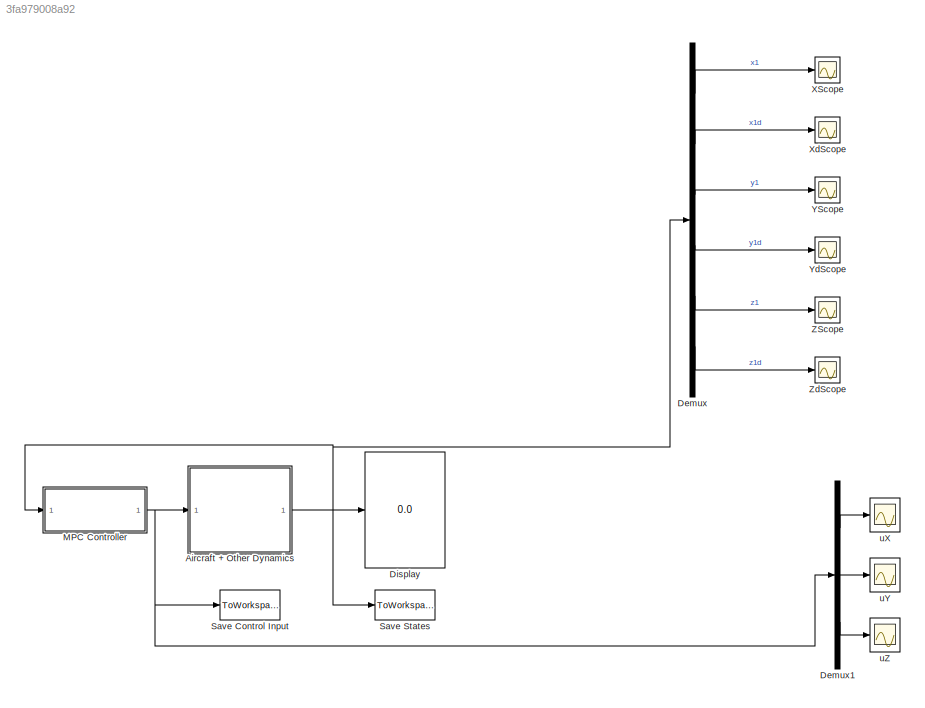
MODEL slx_3fa979008a92
KIND model
CONFIG AbsTol = auto
CONFIG EnableMultiTasking = off
CONFIG FixedStep = tstep
CONFIG InitFcn = initSim;
CONFIG MaxStep = tstep
CONFIG MinStep = auto
CONFIG RelTol = 1e-3
CONFIG SampleTimeConstraint = Unconstrained
CONFIG Solver = ode23t
CONFIG SolverName = ode23t
CONFIG StartTime = 0.0
CONFIG StopFcn = plotSimSolution;
CONFIG StopTime = 5
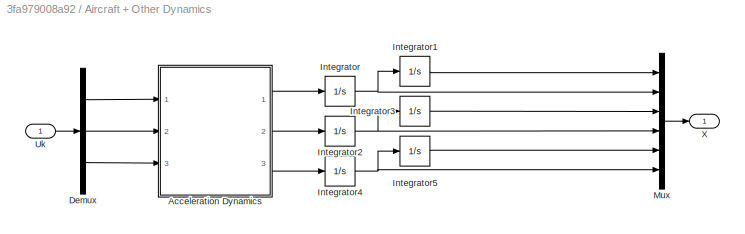
BLOCK [SubSystem] Aircraft + Other Dynamics
  Ports = [1, 1]
  RequestExecContextInheritance = off
  Variant = off
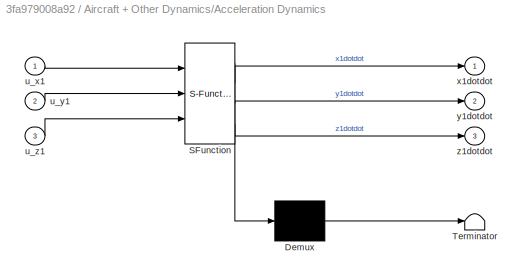
BLOCK [SubSystem] Aircraft + Other Dynamics/Acceleration Dynamics
  ErrorFcn = Stateflow.Translate.translate
  PermitHierarchicalResolution = ExplicitOnly
  Ports = [3, 3]
  RequestExecContextInheritance = off
  SFBlockType = MATLAB Function
  TreatAsAtomicUnit = on
  Variant = off
BLOCK [Demux] Aircraft + Other Dynamics/Acceleration Dynamics/ Demux 
  Outputs = 1
  Ports = [1, 1]
BLOCK [S-Function] Aircraft + Other Dynamics/Acceleration Dynamics/ SFunction 
  EnableBusSupport = on
  FunctionName = sf_sfun
  PortCounts = [3 4]
  Ports = [3, 4]
  SFcnIsStateOwnerBlock = off
  SFunctionDeploymentMode = off
  Tag = Stateflow S-Function SingleAgentNewtonian 2
BLOCK [Terminator] Aircraft + Other Dynamics/Acceleration Dynamics/ Terminator 
BLOCK [Inport] Aircraft + Other Dynamics/Acceleration Dynamics/u_x1
  IconDisplay = Port number
BLOCK [Inport] Aircraft + Other Dynamics/Acceleration Dynamics/u_y1
  IconDisplay = Port number
  Port = 2
BLOCK [Inport] Aircraft + Other Dynamics/Acceleration Dynamics/u_z1
  IconDisplay = Port number
  Port = 3
BLOCK [Outport] Aircraft + Other Dynamics/Acceleration Dynamics/x1dotdot
  IconDisplay = Port number
BLOCK [Outport] Aircraft + Other Dynamics/Acceleration Dynamics/y1dotdot
  IconDisplay = Port number
  Port = 2
BLOCK [Outport] Aircraft + Other Dynamics/Acceleration Dynamics/z1dotdot
  IconDisplay = Port number
  Port = 3
BLOCK [Demux] Aircraft + Other Dynamics/Demux
  DisplayOption = bar
  Outputs = 3
  Ports = [1, 3]
BLOCK [Integrator] Aircraft + Other Dynamics/Integrator
  Ports = [1, 1]
BLOCK [Integrator] Aircraft + Other Dynamics/Integrator1
  InitialCondition = 2.1
  Ports = [1, 1]
BLOCK [Integrator] Aircraft + Other Dynamics/Integrator2
  Ports = [1, 1]
BLOCK [Integrator] Aircraft + Other Dynamics/Integrator3
  Ports = [1, 1]
BLOCK [Integrator] Aircraft + Other Dynamics/Integrator4
  Ports = [1, 1]
BLOCK [Integrator] Aircraft + Other Dynamics/Integrator5
  InitialCondition = 2.2
  Ports = [1, 1]
BLOCK [Mux] Aircraft + Other Dynamics/Mux
  DisplayOption = bar
  Inputs = 6
  Ports = [6, 1]
BLOCK [Inport] Aircraft + Other Dynamics/Uk
  IconDisplay = Port number
BLOCK [Outport] Aircraft + Other Dynamics/X
  IconDisplay = Port number
BLOCK [Demux] Demux
  DisplayOption = bar
  Outputs = 6
  Ports = [1, 6]
BLOCK [Demux] Demux1
  DisplayOption = bar
  Outputs = 3
  Ports = [1, 3]
BLOCK [Display] Display
  Decimation = 1
  Ports = [1]
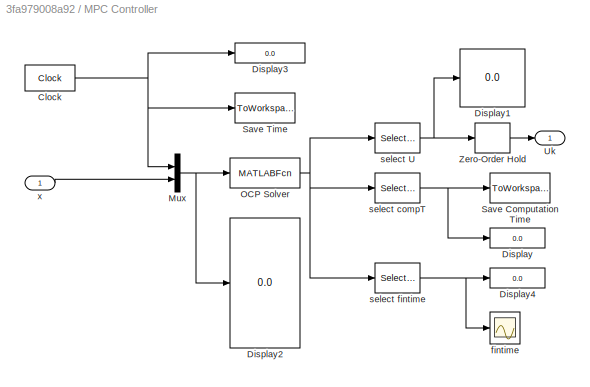
BLOCK [SubSystem] MPC Controller 
  Ports = [1, 1]
  RequestExecContextInheritance = off
  Variant = off
BLOCK [Clock] MPC Controller /Clock
  DisplayTime = on
BLOCK [Display] MPC Controller /Display
  Decimation = 1
  Ports = [1]
BLOCK [Display] MPC Controller /Display1
  Decimation = 1
  Ports = [1]
BLOCK [Display] MPC Controller /Display2
  Decimation = 1
  Ports = [1]
BLOCK [Display] MPC Controller /Display3
  Decimation = 1
  Ports = [1]
BLOCK [Display] MPC Controller /Display4
  Decimation = 1
  Ports = [1]
BLOCK [Mux] MPC Controller /Mux
  DisplayOption = bar
  Inputs = 2
  Ports = [2, 1]
BLOCK [MATLABFcn] MPC Controller /OCP Solver
  MATLABFcn = SingleAgentSolver
  OutputDimensions = m+2
  Ports = [1, 1]
BLOCK [ToWorkspace] MPC Controller /Save Computation Time 
  FixptAsFi = on
  MaxDataPoints = inf
  Ports = [1]
  SampleTime = tstep
  Save2DSignal = 2-D array (concatenate along first dimension)
  VariableName = Comp_Time
BLOCK [ToWorkspace] MPC Controller /Save Time
  FixptAsFi = on
  MaxDataPoints = inf
  Ports = [1]
  SampleTime = -1
  Save2DSignal = 2-D array (concatenate along first dimension)
  VariableName = T
BLOCK [Outport] MPC Controller /Uk
  IconDisplay = Port number
BLOCK [ZeroOrderHold] MPC Controller /Zero-Order Hold
  SampleTime = tstep
BLOCK [Scope] MPC Controller /fintime
  NumInputPorts = 1
  Ports = [1]
  ScopeSpecificationString = Simulink.scopes.TimeScopeBlockCfg('CurrentConfiguration', extmgr.ConfigurationSet(extmgr.Configuration('Core','General UI',true),extmgr.Configuration('Core','Source UI',true),extmgr.Configuration('Sources','WiredSimulink',true,'DataLoggingVariableName','ScopeData1'),extmgr.Configuration('Visuals','Time Domain',true),extmgr.Configuration('Tools','Plot Navigation',true),extmgr.Configuration('Tools',...<+40ch>
BLOCK [Selector] MPC Controller /select U
  IndexOptions = Index vector (dialog)
  Indices = 3:m+2
  OutputSizes = 1
  Ports = [1, 1]
BLOCK [Selector] MPC Controller /select compT
  IndexOptions = Index vector (dialog)
  Indices = 2
  OutputSizes = 1
  Ports = [1, 1]
BLOCK [Selector] MPC Controller /select fintime
  IndexOptions = Index vector (dialog)
  Indices = 1
  OutputSizes = 1
  Ports = [1, 1]
BLOCK [Inport] MPC Controller /x
  IconDisplay = Port number
BLOCK [ToWorkspace] Save Control Input
  FixptAsFi = on
  MaxDataPoints = inf
  Ports = [1]
  SampleTime = -1
  Save2DSignal = 2-D array (concatenate along first dimension)
  VariableName = U
BLOCK [ToWorkspace] Save States
  FixptAsFi = on
  MaxDataPoints = inf
  Ports = [1]
  SampleTime = -1
  Save2DSignal = 3-D array (concatenate along third dimension)
  SaveFormat = Timeseries
  VariableName = X
BLOCK [Scope] XScope
  NumInputPorts = 1
  Ports = [1]
  ScopeSpecificationString = Simulink.scopes.TimeScopeBlockCfg('CurrentConfiguration', extmgr.ConfigurationSet(extmgr.Configuration('Core','General UI',true),extmgr.Configuration('Core','Source UI',true),extmgr.Configuration('Sources','WiredSimulink',true),extmgr.Configuration('Visuals','Time Domain',true,'SerializedDisplays',{struct('MinYLimReal','0.99692','MaxYLimReal','12.02774','YLabelReal','','MinYLimMag','0.99692','MaxY...<+1395ch>
BLOCK [Scope] XdScope
  NumInputPorts = 1
  Ports = [1]
  ScopeSpecificationString = Simulink.scopes.TimeScopeBlockCfg('CurrentConfiguration', extmgr.ConfigurationSet(extmgr.Configuration('Core','General UI',true),extmgr.Configuration('Core','Source UI',true),extmgr.Configuration('Sources','WiredSimulink',true,'DataLoggingVariableName','ScopeData1'),extmgr.Configuration('Visuals','Time Domain',true,'SerializedDisplays',{struct('MinYLimReal','0.99692','MaxYLimReal','12.02774','YLab...<+1433ch>
BLOCK [Scope] YScope
  NumInputPorts = 1
  Ports = [1]
  ScopeSpecificationString = Simulink.scopes.TimeScopeBlockCfg('CurrentConfiguration', extmgr.ConfigurationSet(extmgr.Configuration('Core','General UI',true),extmgr.Configuration('Core','Source UI',true),extmgr.Configuration('Sources','WiredSimulink',true,'DataLoggingVariableName','ScopeData2'),extmgr.Configuration('Visuals','Time Domain',true,'SerializedDisplays',{struct('MinYLimReal','0.99692','MaxYLimReal','12.02774','YLab...<+1432ch>
BLOCK [Scope] YdScope
  NumInputPorts = 1
  Ports = [1]
  ScopeSpecificationString = Simulink.scopes.TimeScopeBlockCfg('CurrentConfiguration', extmgr.ConfigurationSet(extmgr.Configuration('Core','General UI',true),extmgr.Configuration('Core','Source UI',true),extmgr.Configuration('Sources','WiredSimulink',true,'DataLoggingVariableName','ScopeData3'),extmgr.Configuration('Visuals','Time Domain',true,'SerializedDisplays',{struct('MinYLimReal','0.99692','MaxYLimReal','12.02774','YLab...<+1432ch>
BLOCK [Scope] ZScope
  NumInputPorts = 1
  Ports = [1]
  ScopeSpecificationString = Simulink.scopes.TimeScopeBlockCfg('CurrentConfiguration', extmgr.ConfigurationSet(extmgr.Configuration('Core','General UI',true),extmgr.Configuration('Core','Source UI',true),extmgr.Configuration('Sources','WiredSimulink',true,'DataLoggingVariableName','ScopeData4'),extmgr.Configuration('Visuals','Time Domain',true,'SerializedDisplays',{struct('MinYLimReal','2.17397','MaxYLimReal','2.41242','YLabe...<+1428ch>
BLOCK [Scope] ZdScope
  NumInputPorts = 1
  Ports = [1]
  ScopeSpecificationString = Simulink.scopes.TimeScopeBlockCfg('CurrentConfiguration', extmgr.ConfigurationSet(extmgr.Configuration('Core','General UI',true),extmgr.Configuration('Core','Source UI',true),extmgr.Configuration('Sources','WiredSimulink',true,'DataLoggingVariableName','ScopeData5'),extmgr.Configuration('Visuals','Time Domain',true,'SerializedDisplays',{struct('MinYLimReal','0.99692','MaxYLimReal','12.02774','YLab...<+1435ch>
BLOCK [Scope] uX
  NumInputPorts = 1
  Ports = [1]
  ScopeSpecificationString = Simulink.scopes.TimeScopeBlockCfg('CurrentConfiguration', extmgr.ConfigurationSet(extmgr.Configuration('Core','General UI',true),extmgr.Configuration('Core','Source UI',true),extmgr.Configuration('Sources','WiredSimulink',true,'DataLoggingVariableName','ScopeData1'),extmgr.Configuration('Visuals','Time Domain',true,'SerializedDisplays',{struct('MinYLimReal','-9.16843','MaxYLimReal','82.51438','YLa...<+1441ch>
BLOCK [Scope] uY
  NumInputPorts = 1
  Ports = [1]
  ScopeSpecificationString = Simulink.scopes.TimeScopeBlockCfg('CurrentConfiguration', extmgr.ConfigurationSet(extmgr.Configuration('Core','General UI',true),extmgr.Configuration('Core','Source UI',true),extmgr.Configuration('Sources','WiredSimulink',true,'DataLoggingVariableName','ScopeData2'),extmgr.Configuration('Visuals','Time Domain',true,'SerializedDisplays',{struct('MinYLimReal','-9.16843','MaxYLimReal','82.51438','YLa...<+1444ch>
BLOCK [Scope] uZ
  NumInputPorts = 1
  Ports = [1]
  ScopeSpecificationString = Simulink.scopes.TimeScopeBlockCfg('CurrentConfiguration', extmgr.ConfigurationSet(extmgr.Configuration('Core','General UI',true),extmgr.Configuration('Core','Source UI',true),extmgr.Configuration('Sources','WiredSimulink',true,'DataLoggingVariableName','ScopeData3'),extmgr.Configuration('Visuals','Time Domain',true,'SerializedDisplays',{struct('MinYLimReal','-37.74035','MaxYLimReal','35.30914','YL...<+1446ch>
LINE Aircraft + Other Dynamics/Acceleration Dynamics:1 -> Aircraft + Other Dynamics/Integrator:1
LINE Aircraft + Other Dynamics/Acceleration Dynamics:2 -> Aircraft + Other Dynamics/Integrator2:1
LINE Aircraft + Other Dynamics/Acceleration Dynamics:3 -> Aircraft + Other Dynamics/Integrator4:1
LINE Aircraft + Other Dynamics/Demux:1 -> Aircraft + Other Dynamics/Acceleration Dynamics:1
LINE Aircraft + Other Dynamics/Demux:2 -> Aircraft + Other Dynamics/Acceleration Dynamics:2
LINE Aircraft + Other Dynamics/Demux:3 -> Aircraft + Other Dynamics/Acceleration Dynamics:3
LINE Aircraft + Other Dynamics/Integrator1:1 -> Aircraft + Other Dynamics/Mux:1
NET Aircraft + Other Dynamics/Integrator2:1 -> Aircraft + Other Dynamics/Integrator3:1, Aircraft + Other Dynamics/Mux:4
LINE Aircraft + Other Dynamics/Integrator3:1 -> Aircraft + Other Dynamics/Mux:3
NET Aircraft + Other Dynamics/Integrator4:1 -> Aircraft + Other Dynamics/Integrator5:1, Aircraft + Other Dynamics/Mux:6
LINE Aircraft + Other Dynamics/Integrator5:1 -> Aircraft + Other Dynamics/Mux:5
NET Aircraft + Other Dynamics/Integrator:1 -> Aircraft + Other Dynamics/Integrator1:1, Aircraft + Other Dynamics/Mux:2
LINE Aircraft + Other Dynamics/Mux:1 -> Aircraft + Other Dynamics/X:1
LINE Aircraft + Other Dynamics/Uk:1 -> Aircraft + Other Dynamics/Demux:1
NET Aircraft + Other Dynamics:1 -> Demux:1, Display:1, MPC Controller :1, Save States:1
LINE Demux1:1 -> uX:1
LINE Demux1:2 -> uY:1
LINE Demux1:3 -> uZ:1
LINE Demux:1 -> XScope:1
LINE Demux:2 -> XdScope:1
LINE Demux:3 -> YScope:1
LINE Demux:4 -> YdScope:1
LINE Demux:5 -> ZScope:1
LINE Demux:6 -> ZdScope:1
NET MPC Controller /Clock:1 -> MPC Controller /Display3:1, MPC Controller /Mux:1, MPC Controller /Save Time:1
NET MPC Controller /Mux:1 -> MPC Controller /Display2:1, MPC Controller /OCP Solver:1
NET MPC Controller /OCP Solver:1 -> MPC Controller /select U:1, MPC Controller /select compT:1, MPC Controller /select fintime:1
LINE MPC Controller /Zero-Order Hold:1 -> MPC Controller /Uk:1
NET MPC Controller /select U:1 -> MPC Controller /Display1:1, MPC Controller /Zero-Order Hold:1
NET MPC Controller /select compT:1 -> MPC Controller /Display:1, MPC Controller /Save Computation Time :1
NET MPC Controller /select fintime:1 -> MPC Controller /Display4:1, MPC Controller /fintime:1
LINE MPC Controller /x:1 -> MPC Controller /Mux:2
NET MPC Controller :1 -> Aircraft + Other Dynamics:1, Demux1:1, Save Control Input:1
note: NET lines group one-source signal fan-out (src -> all destinations, sorted); 1:1 wires keep LINE
CHART Aircraft + Other Dynamics/Acceleration Dynamics states=1 transitions=1
  STATE_LABEL 'eML_blk_kernel()'
  STATE_LABEL 'SCRIPT:\nfunction [x1dotdot,y1dotdot,z1dotdot]= dynamics(u_x1,u_y1,u_z1)\n\nm_ag = 0.81;\ngc = 9.81;\n\nx1dotdot = (1/m_ag)*(u_x1); %x1..\ny1dotdot = (1/m_ag)*(u_y1); %y1..\nz1dotdot = (1/m_ag)*(u_z1 - m_ag*gc); %z1..'
